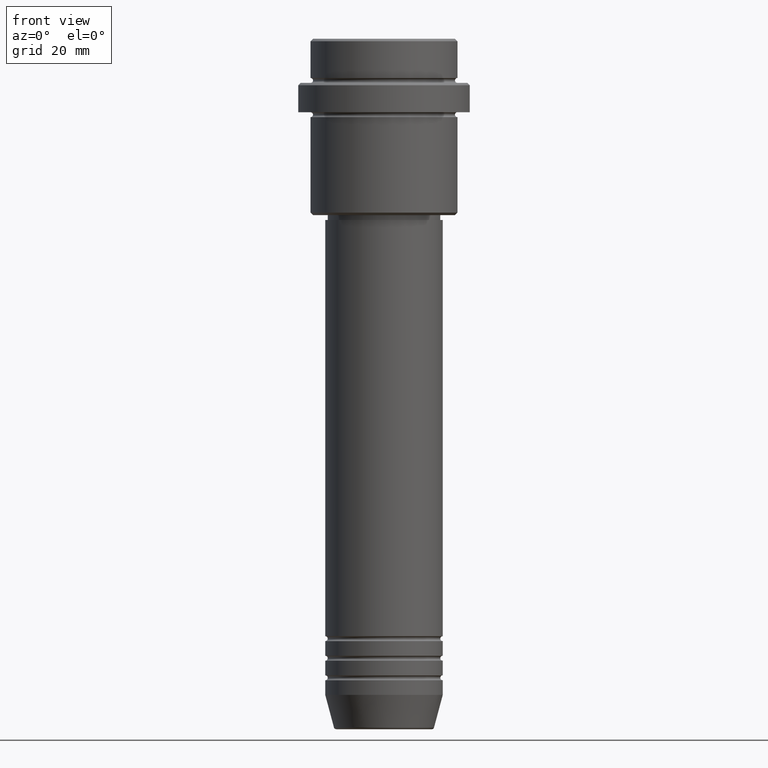
[diagram: clean part render]
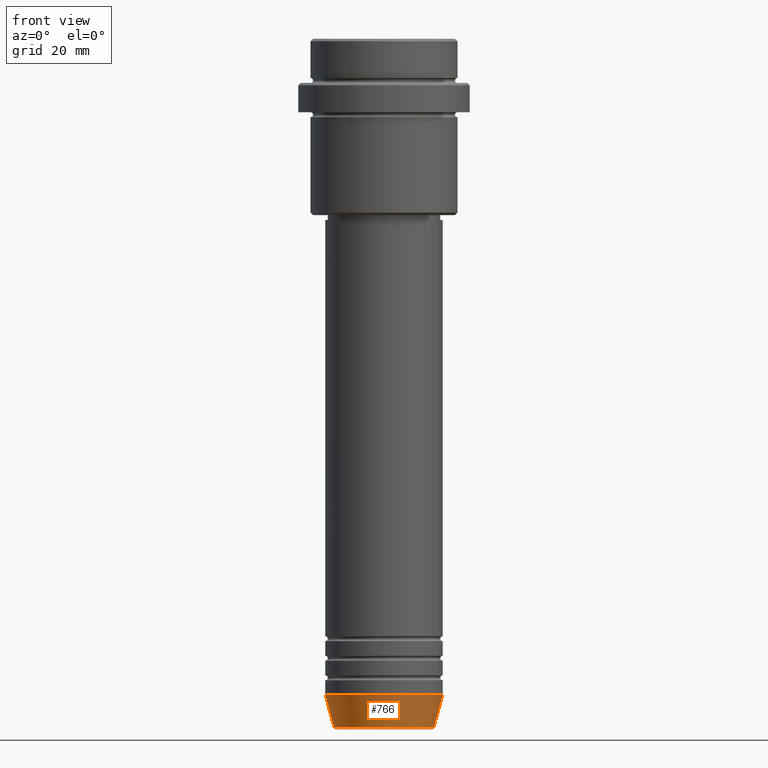
[diagram: same view with one face highlighted and labeled with its STEP entity id]
A machine part, front view. The second image highlights one B-rep face of the part: STEP entity #766.
In plain terms, the highlighted conical surface has half-angle 15 deg.
Its self-contained STEP definition (entity closure, byte-faithful):
#79 = CIRCLE ( 'NONE', #195, 12.00000000000000000 ) ;
#87 = CARTESIAN_POINT ( 'NONE',  ( -12.00000000000000000, 1.469576158976823947E-15, -133.9999999999999716 ) ) ;
#141 = EDGE_CURVE ( 'NONE', #163, #781, #680, .T. ) ;
#156 = CONICAL_SURFACE ( 'NONE', #682, 12.00000000000000000, 0.2617993877991500740 ) ;
#163 = VERTEX_POINT ( 'NONE', #1005 ) ;
#195 = AXIS2_PLACEMENT_3D ( 'NONE', #1261, #283, #707 ) ;
#252 = FACE_OUTER_BOUND ( 'NONE', #823, .T. ) ;
#264 = CARTESIAN_POINT ( 'NONE',  ( 12.00000000000000000, 0.000000000000000000, -133.9999999999999716 ) ) ;
#283 = DIRECTION ( 'NONE',  ( -0.000000000000000000, -0.000000000000000000, 1.000000000000000000 ) ) ;
#409 = DIRECTION ( 'NONE',  ( -0.000000000000000000, -0.000000000000000000, 1.000000000000000000 ) ) ;
#419 = CARTESIAN_POINT ( 'NONE',  ( -10.22365507213719127, 1.360806402472382744E-15, -140.6294095225512422 ) ) ;
#546 = VERTEX_POINT ( 'NONE', #419 ) ;
#585 = CARTESIAN_POINT ( 'NONE',  ( 12.00000000000000000, 0.000000000000000000, -133.9999999999999716 ) ) ;
#647 = ORIENTED_EDGE ( 'NONE', *, *, #1387, .T. ) ;
#680 = LINE ( 'NONE', #585, #813 ) ;
#682 = AXIS2_PLACEMENT_3D ( 'NONE', #1013, #881, #699 ) ;
#699 = DIRECTION ( 'NONE',  ( 1.000000000000000000, 0.000000000000000000, 0.000000000000000000 ) ) ;
#706 = ORIENTED_EDGE ( 'NONE', *, *, #1212, .F. ) ;
#707 = DIRECTION ( 'NONE',  ( 1.000000000000000000, 0.000000000000000000, 0.000000000000000000 ) ) ;
#710 = DIRECTION ( 'NONE',  ( -0.2588190451025213501, 3.169619151431772337E-17, 0.9659258262890680902 ) ) ;
#766 = ADVANCED_FACE ( 'NONE', ( #252 ), #156, .T. ) ;
#781 = VERTEX_POINT ( 'NONE', #264 ) ;
#813 = VECTOR ( 'NONE', #896, 1000.000000000000000 ) ;
#823 = EDGE_LOOP ( 'NONE', ( #706, #647, #1129, #1201 ) ) ;
#830 = VECTOR ( 'NONE', #710, 1000.000000000000000 ) ;
#841 = EDGE_CURVE ( 'NONE', #1312, #781, #79, .T. ) ;
#881 = DIRECTION ( 'NONE',  ( -0.000000000000000000, -0.000000000000000000, 1.000000000000000000 ) ) ;
#896 = DIRECTION ( 'NONE',  ( 0.2588190451025213501, 0.000000000000000000, 0.9659258262890680902 ) ) ;
#935 = DIRECTION ( 'NONE',  ( 1.000000000000000000, 0.000000000000000000, 0.000000000000000000 ) ) ;
#1005 = CARTESIAN_POINT ( 'NONE',  ( 10.22365507213719127, 0.000000000000000000, -140.6294095225512422 ) ) ;
#1013 = CARTESIAN_POINT ( 'NONE',  ( 0.000000000000000000, 0.000000000000000000, -133.9999999999999716 ) ) ;
#1057 = CARTESIAN_POINT ( 'NONE',  ( 0.000000000000000000, 0.000000000000000000, -140.6294095225512422 ) ) ;
#1066 = AXIS2_PLACEMENT_3D ( 'NONE', #1057, #409, #935 ) ;
#1117 = LINE ( 'NONE', #1354, #830 ) ;
#1129 = ORIENTED_EDGE ( 'NONE', *, *, #141, .T. ) ;
#1201 = ORIENTED_EDGE ( 'NONE', *, *, #841, .F. ) ;
#1212 = EDGE_CURVE ( 'NONE', #546, #1312, #1117, .T. ) ;
#1261 = CARTESIAN_POINT ( 'NONE',  ( 0.000000000000000000, 0.000000000000000000, -133.9999999999999716 ) ) ;
#1265 = CIRCLE ( 'NONE', #1066, 10.22365507213719127 ) ;
#1312 = VERTEX_POINT ( 'NONE', #87 ) ;
#1354 = CARTESIAN_POINT ( 'NONE',  ( -12.00000000000000000, 1.469576158976823947E-15, -133.9999999999999716 ) ) ;
#1387 = EDGE_CURVE ( 'NONE', #546, #163, #1265, .T. ) ;